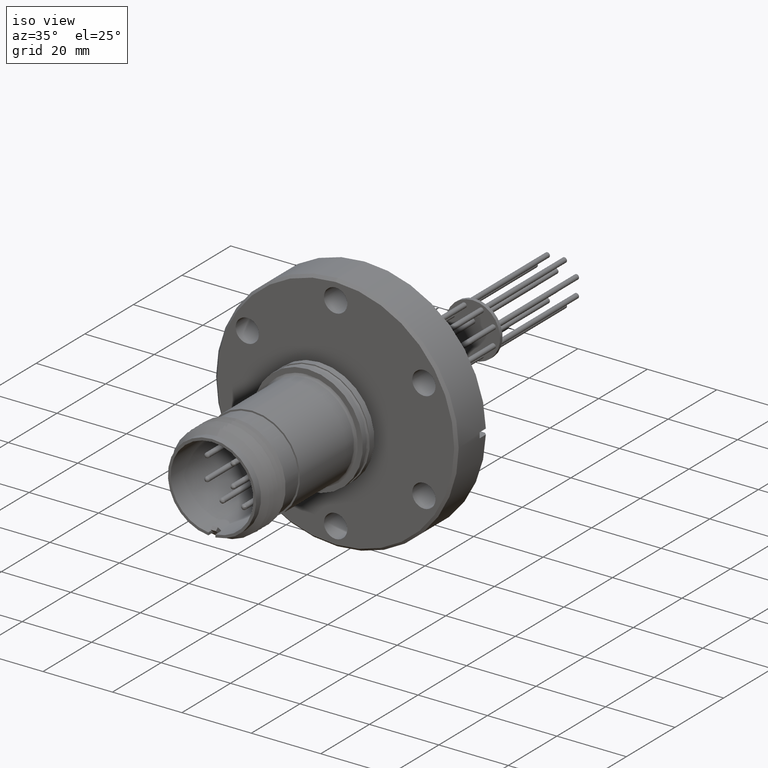
[diagram: clean part render]
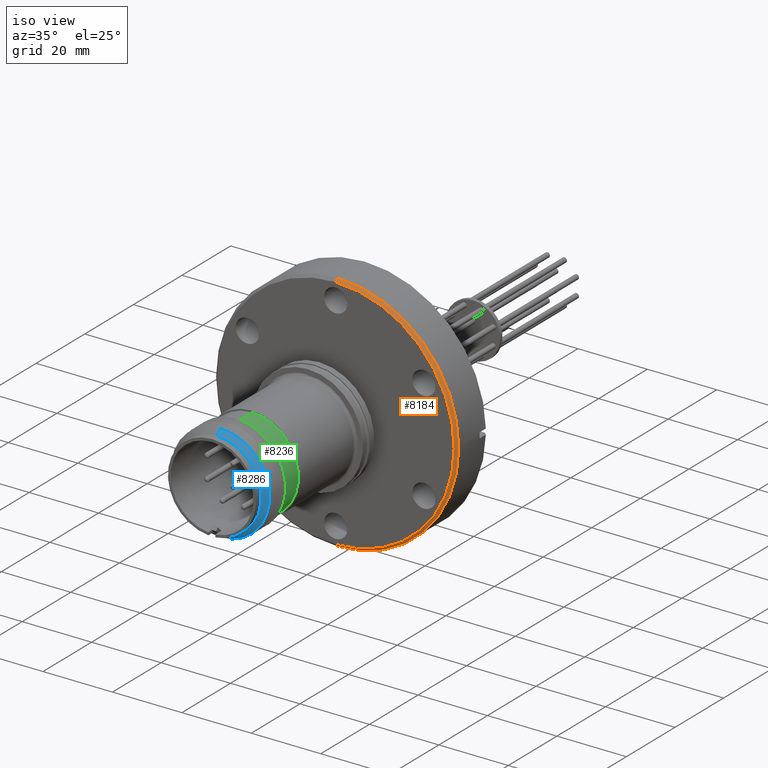
[diagram: same view with three faces highlighted in distinct colors, each labeled with its STEP entity id]
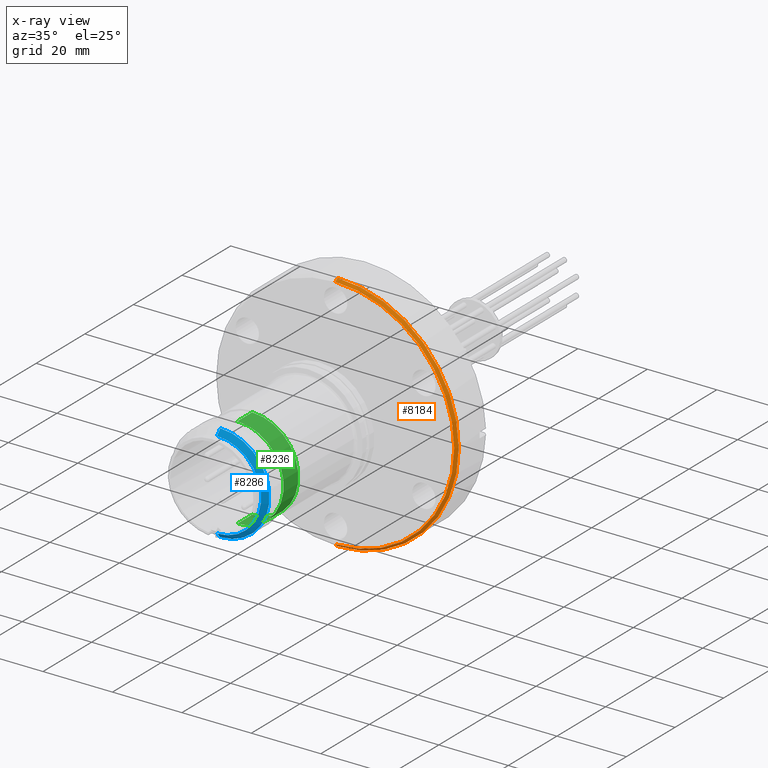
[diagram: x-ray of the same camera — body ghosted, the three highlighted faces saturated]
A machine part, iso view with three faces highlighted in distinct colors.
The next image is the same camera in x-ray (body ghosted, the three faces saturated) — at least one of them is partly hidden behind the body in this view.
Their STEP definitions:

[orange] entity #8184 — the highlighted conical surface has half-angle 45 deg.
#586 = FACE_OUTER_BOUND ( 'NONE', #13135, .T. ) ;
#594 = CONICAL_SURFACE ( 'NONE', #9022, 1.374999999999999800, 0.7853981633974482800 ) ;
#990 = LINE ( 'NONE', #2807, #995 ) ;
#993 = CIRCLE ( 'NONE', #2221, 1.374999999999999800 ) ;
#994 = CIRCLE ( 'NONE', #2222, 1.344999999999999800 ) ;
#995 = VECTOR ( 'NONE', #2819, 39.37007874015748100 ) ;
#996 = LINE ( 'NONE', #2800, #998 ) ;
#998 = VECTOR ( 'NONE', #2810, 39.37007874015748100 ) ;
#1480 = VERTEX_POINT ( 'NONE', #12711 ) ;
#1597 = VERTEX_POINT ( 'NONE', #12842 ) ;
#1598 = VERTEX_POINT ( 'NONE', #12841 ) ;
#2102 = EDGE_CURVE ( 'NONE', #1480, #1598, #990, .T. ) ;
#2103 = EDGE_CURVE ( 'NONE', #1598, #1597, #993, .T. ) ;
#2104 = EDGE_CURVE ( 'NONE', #2945, #1597, #996, .T. ) ;
#2105 = EDGE_CURVE ( 'NONE', #1480, #2945, #994, .T. ) ;
#2221 = AXIS2_PLACEMENT_3D ( 'NONE', #2794, #2793, #2792 ) ;
#2222 = AXIS2_PLACEMENT_3D ( 'NONE', #2788, #2787, #2782 ) ;
#2782 = DIRECTION ( 'NONE',  ( 0.0000000000000000000, 0.0000000000000000000, 1.000000000000000000 ) ) ;
#2787 = DIRECTION ( 'NONE',  ( -0.0000000000000000000, 1.000000000000000000, -0.0000000000000000000 ) ) ;
#2788 = CARTESIAN_POINT ( 'NONE',  ( 0.0000000000000000000, 1.251650882913234900, 0.0000000000000000000 ) ) ;
#2792 = DIRECTION ( 'NONE',  ( 0.0000000000000000000, 0.0000000000000000000, 1.000000000000000000 ) ) ;
#2793 = DIRECTION ( 'NONE',  ( -0.0000000000000000000, 1.000000000000000000, -0.0000000000000000000 ) ) ;
#2794 = CARTESIAN_POINT ( 'NONE',  ( 0.0000000000000000000, 1.281650882913234700, 0.0000000000000000000 ) ) ;
#2800 = CARTESIAN_POINT ( 'NONE',  ( 1.683889348827610300E-016, 1.281650882913234700, -1.374999999999999800 ) ) ;
#2807 = CARTESIAN_POINT ( 'NONE',  ( 0.0000000000000000000, 1.281650882913234700, 1.374999999999999800 ) ) ;
#2810 = DIRECTION ( 'NONE',  ( 8.659560562354931600E-017, 0.7071067811865475700, -0.7071067811865474600 ) ) ;
#2819 = DIRECTION ( 'NONE',  ( 0.0000000000000000000, 0.7071067811865475700, 0.7071067811865474600 ) ) ;
#2945 = VERTEX_POINT ( 'NONE', #11967 ) ;
#5469 = CARTESIAN_POINT ( 'NONE',  ( 0.0000000000000000000, 1.281650882913234700, 0.0000000000000000000 ) ) ;
#5471 = DIRECTION ( 'NONE',  ( -0.0000000000000000000, 1.000000000000000000, -0.0000000000000000000 ) ) ;
#5473 = DIRECTION ( 'NONE',  ( 0.0000000000000000000, 0.0000000000000000000, 1.000000000000000000 ) ) ;
#6860 = ORIENTED_EDGE ( 'NONE', *, *, #2105, .T. ) ;
#6871 = ORIENTED_EDGE ( 'NONE', *, *, #2103, .F. ) ;
#6872 = ORIENTED_EDGE ( 'NONE', *, *, #2104, .T. ) ;
#7071 = ORIENTED_EDGE ( 'NONE', *, *, #2102, .F. ) ;
#8184 = ADVANCED_FACE ( 'NONE', ( #586 ), #594, .T. ) ;
#9022 = AXIS2_PLACEMENT_3D ( 'NONE', #5469, #5471, #5473 ) ;
#11967 = CARTESIAN_POINT ( 'NONE',  ( 1.665519646840399900E-016, 1.251650882913234900, -1.344999999999999800 ) ) ;
#12711 = CARTESIAN_POINT ( 'NONE',  ( 0.0000000000000000000, 1.251650882913234900, 1.344999999999999800 ) ) ;
#12841 = CARTESIAN_POINT ( 'NONE',  ( 0.0000000000000000000, 1.281650882913234700, 1.374999999999999800 ) ) ;
#12842 = CARTESIAN_POINT ( 'NONE',  ( 1.683889348827610300E-016, 1.281650882913234700, -1.374999999999999800 ) ) ;
#13135 = EDGE_LOOP ( 'NONE', ( #6860, #6872, #6871, #7071 ) ) ;

[blue] entity #8286 — the highlighted conical surface has half-angle 46.432 deg.
#773 = FACE_OUTER_BOUND ( 'NONE', #6486, .T. ) ;
#784 = CONICAL_SURFACE ( 'NONE', #9203, 0.5577199071735673400, 0.8103833467955107200 ) ;
#1054 = LINE ( 'NONE', #2596, #1056 ) ;
#1056 = VECTOR ( 'NONE', #2587, 39.37007874015748100 ) ;
#1057 = CIRCLE ( 'NONE', #2240, 0.5000000000000007800 ) ;
#1058 = LINE ( 'NONE', #2595, #1060 ) ;
#1060 = VECTOR ( 'NONE', #2586, 39.37007874015748100 ) ;
#1065 = CIRCLE ( 'NONE', #2243, 0.5577199071735673400 ) ;
#2147 = EDGE_CURVE ( 'NONE', #9592, #9607, #1054, .T. ) ;
#2148 = EDGE_CURVE ( 'NONE', #9595, #9609, #1058, .T. ) ;
#2149 = EDGE_CURVE ( 'NONE', #9595, #9592, #1057, .T. ) ;
#2155 = EDGE_CURVE ( 'NONE', #9609, #9607, #1065, .T. ) ;
#2240 = AXIS2_PLACEMENT_3D ( 'NONE', #2583, #2582, #2581 ) ;
#2243 = AXIS2_PLACEMENT_3D ( 'NONE', #2560, #2558, #2557 ) ;
#2557 = DIRECTION ( 'NONE',  ( 0.003531767505636471400, -2.449121824885917100E-016, 0.9999937632896948000 ) ) ;
#2558 = DIRECTION ( 'NONE',  ( 8.430459546910140800E-017, -1.000000000000000000, -2.529717326121717100E-016 ) ) ;
#2560 = CARTESIAN_POINT ( 'NONE',  ( 1.077799403750353800E-016, -0.6144437585266519000, 1.365923996832131600E-016 ) ) ;
#2581 = DIRECTION ( 'NONE',  ( 0.0000000000000000000, -2.731847993664258800E-016, 1.000000000000000000 ) ) ;
#2582 = DIRECTION ( 'NONE',  ( 8.430459546910140800E-017, -1.000000000000000000, -2.529717326121717100E-016 ) ) ;
#2583 = CARTESIAN_POINT ( 'NONE',  ( 1.123890647099818300E-016, -0.6693491170867657000, 1.578912691080031100E-016 ) ) ;
#2586 = DIRECTION ( 'NONE',  ( 4.780327769516365500E-018, 0.6892207291286836000, -0.7245514381597250000 ) ) ;
#2587 = DIRECTION ( 'NONE',  ( -8.395163218647551900E-017, 0.6892207291286833700, 0.7245514381597252300 ) ) ;
#2595 = CARTESIAN_POINT ( 'NONE',  ( 1.760809302891222000E-016, -0.6144437585266517800, -0.5577199071735672300 ) ) ;
#2596 = CARTESIAN_POINT ( 'NONE',  ( 1.077799403750353800E-016, -0.6144437585266521200, 0.5577199071735674500 ) ) ;
#4165 = DIRECTION ( 'NONE',  ( 0.0000000000000000000, -2.449121824885917100E-016, 1.000000000000000000 ) ) ;
#4167 = DIRECTION ( 'NONE',  ( -1.218065978552438800E-016, 1.000000000000000000, 1.841154777256184100E-016 ) ) ;
#4169 = CARTESIAN_POINT ( 'NONE',  ( 1.077799403750353800E-016, -0.6144437585266519000, 1.365923996832131600E-016 ) ) ;
#4348 = CARTESIAN_POINT ( 'NONE',  ( 1.123890647099818300E-016, -0.6693491170867658100, 0.5000000000000008900 ) ) ;
#4351 = CARTESIAN_POINT ( 'NONE',  ( 1.769935884861136100E-016, -0.6693491170867654800, -0.5000000000000005600 ) ) ;
#4363 = CARTESIAN_POINT ( 'NONE',  ( 1.077799403750353800E-016, -0.6144437585266521200, 0.5577199071735674500 ) ) ;
#4365 = CARTESIAN_POINT ( 'NONE',  ( 1.760809302891222000E-016, -0.6144437585266517800, -0.5577199071735672300 ) ) ;
#6486 = EDGE_LOOP ( 'NONE', ( #7184, #7253, #7037, #6890 ) ) ;
#6890 = ORIENTED_EDGE ( 'NONE', *, *, #2147, .F. ) ;
#7037 = ORIENTED_EDGE ( 'NONE', *, *, #2155, .T. ) ;
#7184 = ORIENTED_EDGE ( 'NONE', *, *, #2149, .F. ) ;
#7253 = ORIENTED_EDGE ( 'NONE', *, *, #2148, .T. ) ;
#8286 = ADVANCED_FACE ( 'NONE', ( #773 ), #784, .T. ) ;
#9203 = AXIS2_PLACEMENT_3D ( 'NONE', #4169, #4167, #4165 ) ;
#9592 = VERTEX_POINT ( 'NONE', #4348 ) ;
#9595 = VERTEX_POINT ( 'NONE', #4351 ) ;
#9607 = VERTEX_POINT ( 'NONE', #4363 ) ;
#9609 = VERTEX_POINT ( 'NONE', #4365 ) ;

[green] entity #8236 — the highlighted cylindrical surface (partial cylindrical patch) has radius 13.335 mm, axis along (-0, 1, 0).
#47 = CARTESIAN_POINT ( 'NONE',  ( -1.707404996040164500E-017, 0.8663099291372705600, 5.463695987328526400E-016 ) ) ;
#49 = DIRECTION ( 'NONE',  ( -8.430459546910140800E-017, 1.000000000000000000, 2.529717326121717100E-016 ) ) ;
#51 = DIRECTION ( 'NONE',  ( 0.0000000000000000000, -2.601759993966013800E-016, 1.000000000000000000 ) ) ;
#674 = FACE_OUTER_BOUND ( 'NONE', #6651, .T. ) ;
#684 = CYLINDRICAL_SURFACE ( 'NONE', #9127, 0.5249999999999901400 ) ;
#1503 = VERTEX_POINT ( 'NONE', #12951 ) ;
#1858 = VERTEX_POINT ( 'NONE', #2746 ) ;
#2746 = CARTESIAN_POINT ( 'NONE',  ( 1.504102652408925200E-016, -0.3393491170867768400, 0.5249999999999898100 ) ) ;
#4379 = CARTESIAN_POINT ( 'NONE',  ( 1.387459537041214800E-016, -0.09934911708676545700, -0.5249999999999898100 ) ) ;
#4382 = CARTESIAN_POINT ( 'NONE',  ( 6.433544529259402700E-017, -0.09934911708676572000, 0.5249999999999903600 ) ) ;
#6651 = EDGE_LOOP ( 'NONE', ( #12530, #12531, #12532, #12533 ) ) ;
#8236 = ADVANCED_FACE ( 'NONE', ( #674 ), #684, .T. ) ;
#9127 = AXIS2_PLACEMENT_3D ( 'NONE', #47, #49, #51 ) ;
#9623 = VERTEX_POINT ( 'NONE', #4379 ) ;
#9626 = VERTEX_POINT ( 'NONE', #4382 ) ;
#10156 = EDGE_CURVE ( 'NONE', #9623, #9626, #10872, .T. ) ;
#10158 = EDGE_CURVE ( 'NONE', #1858, #9626, #10874, .T. ) ;
#10160 = EDGE_CURVE ( 'NONE', #1503, #9623, #10878, .T. ) ;
#10162 = EDGE_CURVE ( 'NONE', #1503, #1858, #10881, .T. ) ;
#10872 = CIRCLE ( 'NONE', #11074, 0.5249999999999901400 ) ;
#10874 = LINE ( 'NONE', #13316, #10877 ) ;
#10877 = VECTOR ( 'NONE', #13318, 39.37007874015748100 ) ;
#10878 = LINE ( 'NONE', #13317, #10880 ) ;
#10880 = VECTOR ( 'NONE', #13302, 39.37007874015748100 ) ;
#10881 = CIRCLE ( 'NONE', #11076, 0.5249999999999901400 ) ;
#11074 = AXIS2_PLACEMENT_3D ( 'NONE', #13313, #13314, #13315 ) ;
#11076 = AXIS2_PLACEMENT_3D ( 'NONE', #13326, #13327, #13328 ) ;
#12530 = ORIENTED_EDGE ( 'NONE', *, *, #10162, .F. ) ;
#12531 = ORIENTED_EDGE ( 'NONE', *, *, #10160, .T. ) ;
#12532 = ORIENTED_EDGE ( 'NONE', *, *, #10156, .T. ) ;
#12533 = ORIENTED_EDGE ( 'NONE', *, *, #10158, .F. ) ;
#12951 = CARTESIAN_POINT ( 'NONE',  ( 8.382009553725621600E-017, -0.3393491170867765600, -0.5249999999999905900 ) ) ;
#13302 = DIRECTION ( 'NONE',  ( -8.430459546910140800E-017, 1.000000000000000000, 2.529717326121717100E-016 ) ) ;
#13313 = CARTESIAN_POINT ( 'NONE',  ( 6.433544529259402700E-017, -0.09934911708676559500, 3.020851566969410100E-016 ) ) ;
#13314 = DIRECTION ( 'NONE',  ( 8.430459546910140800E-017, -1.000000000000000000, -2.529717326121717100E-016 ) ) ;
#13315 = DIRECTION ( 'NONE',  ( 0.0000000000000000000, -2.601759993966013800E-016, 1.000000000000000000 ) ) ;
#13316 = CARTESIAN_POINT ( 'NONE',  ( -1.707404996040164500E-017, 0.8663099291372704500, 0.5249999999999907000 ) ) ;
#13317 = CARTESIAN_POINT ( 'NONE',  ( 4.721990699483319000E-017, 0.8663099291372706700, -0.5249999999999895900 ) ) ;
#13318 = DIRECTION ( 'NONE',  ( -8.430459546910140800E-017, 1.000000000000000000, 2.529717326121717100E-016 ) ) ;
#13326 = CARTESIAN_POINT ( 'NONE',  ( 8.270242949569547100E-017, -0.3393491170867766700, -4.097771990496394800E-016 ) ) ;
#13327 = DIRECTION ( 'NONE',  ( 8.430459546910140800E-017, -1.000000000000000000, -2.529717326121717100E-016 ) ) ;
#13328 = DIRECTION ( 'NONE',  ( -0.003531767505636470500, 2.601759993966013800E-016, -0.9999937632896948000 ) ) ;